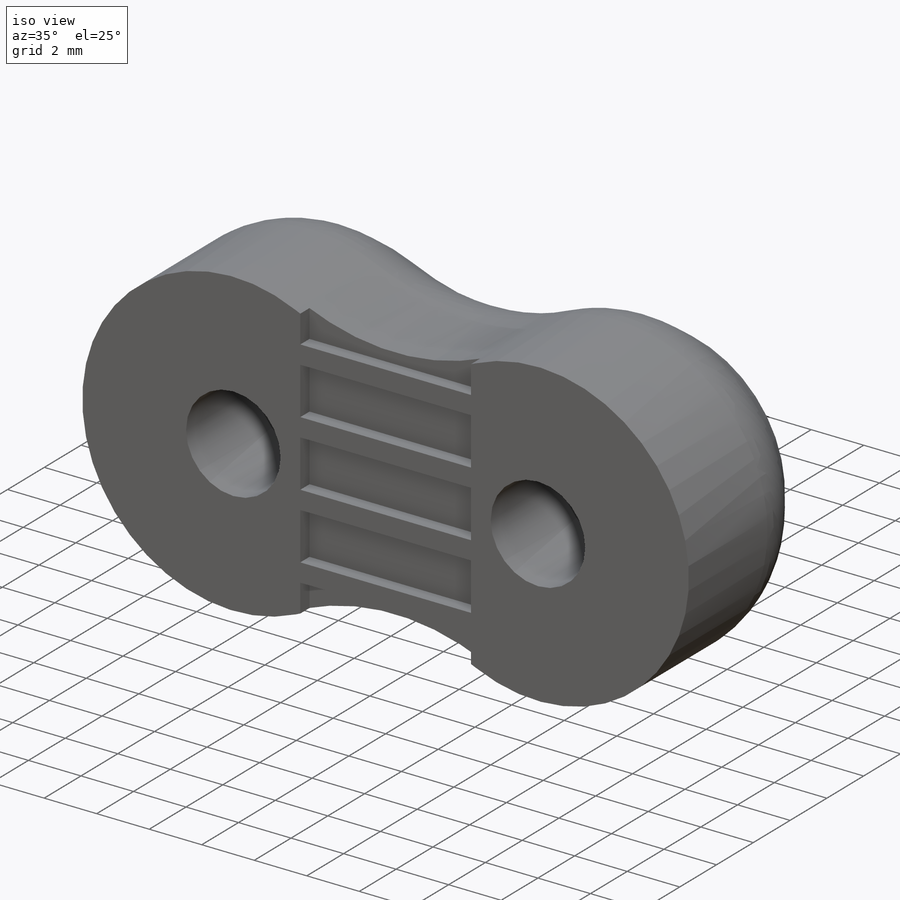
[diagram: iso view]
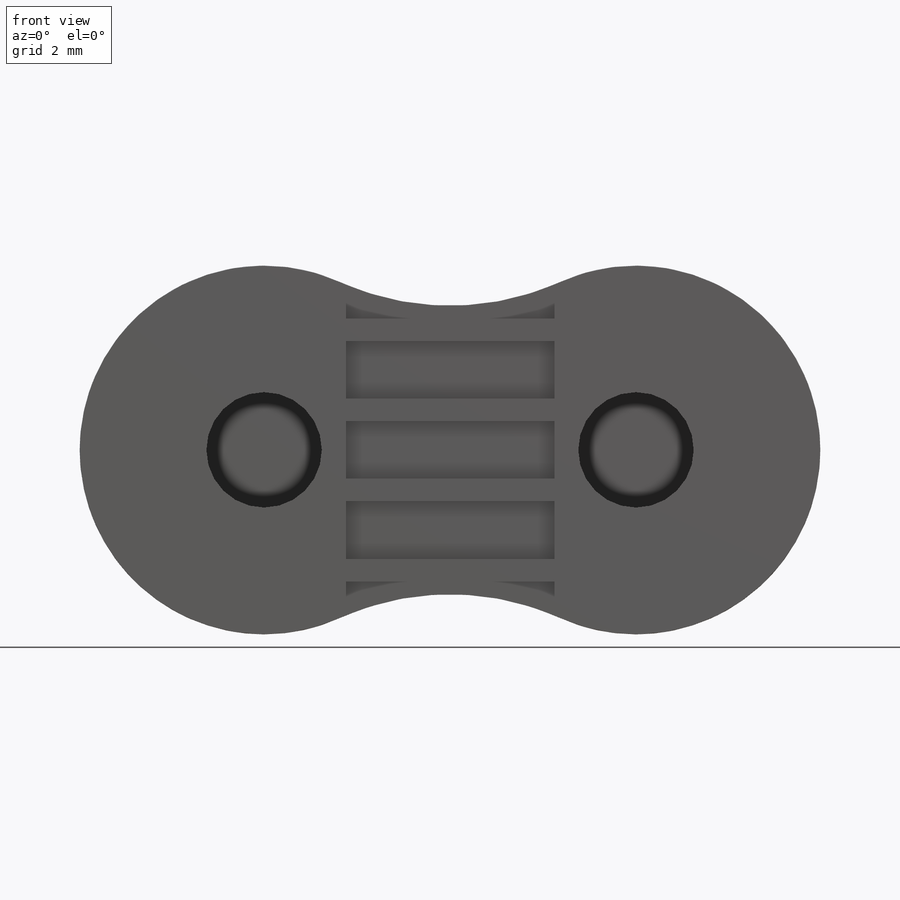
[diagram: front view]
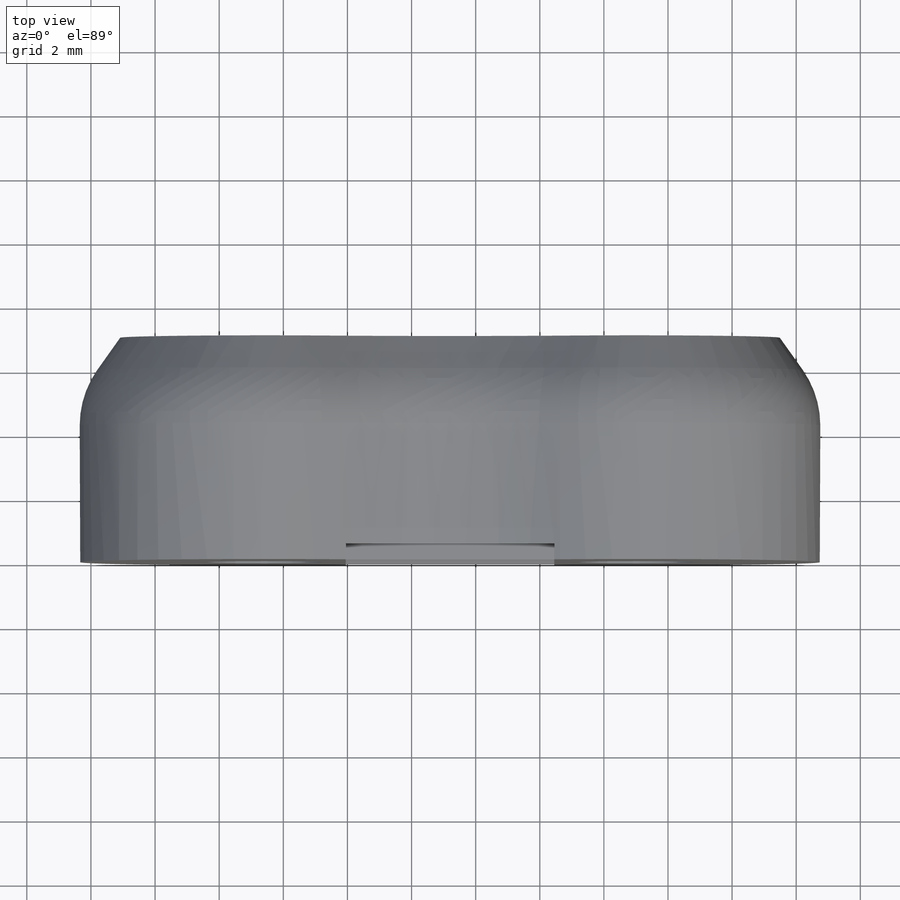
[diagram: top view]
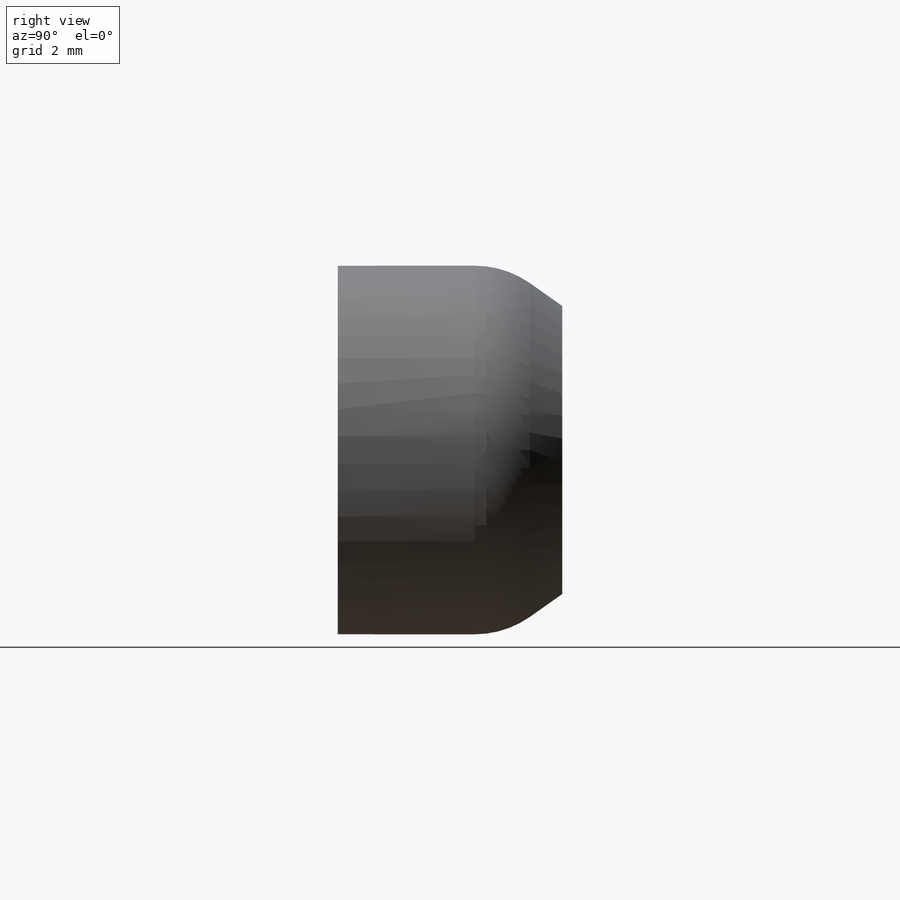
[diagram: right view]
SOLIDWORKS PART (.sldprt)
format: sldprt  version: not decoded by parser v0  size: 333,312 bytes
history: native  units: mm
features: sketch x6, extrude x3, cut_extrude x3, material x1, chamfer x1, fillet x1 (+11 scaffold rows collapsed)
feature tree (26):
  scaffold x11  (default folders/planes/origin — collapsed)
  material  "Material <not specified>"
  sketch  "Sketch1"  dims[D1=0.0mm]
  extrude  "Boss-Extrude1"  Depth=7mm
  sketch  "Sketch5"
  cut_extrude  "Cut-Extrude4"  [1 undecoded]
  sketch  "Sketch2"  dims[D1=0.75mm D2=0.75mm]
  cut_extrude  "Cut-Extrude1"  Depth=0.5mm
  sketch  "Sketch6"  dims[D1=~2.156502mm]
  cut_extrude  "Cut-Extrude5"  Depth=2.5mm
  chamfer  "Chamfer1"  Distance=1.25mm Angle=55deg
  fillet  "Fillet1"  Radius=3mm
  sketch  "Sketch7"
  extrude  "Boss-Extrude2"  Depth=0.6mm
  sketch  "Sketch8"  dims[D1=0.4mm D2=0.4mm D3=0.8mm D4=0.8mm]
  extrude  "Boss-Extrude3"  [1 undecoded]
decode coverage: 10 of 14 modeling features carry decoded parameters
note: ~ marks probable driven/reference dimensions
note: 2 parameter values undecoded
note: suppression state not decoded; provenance and decode notes live in map.json
